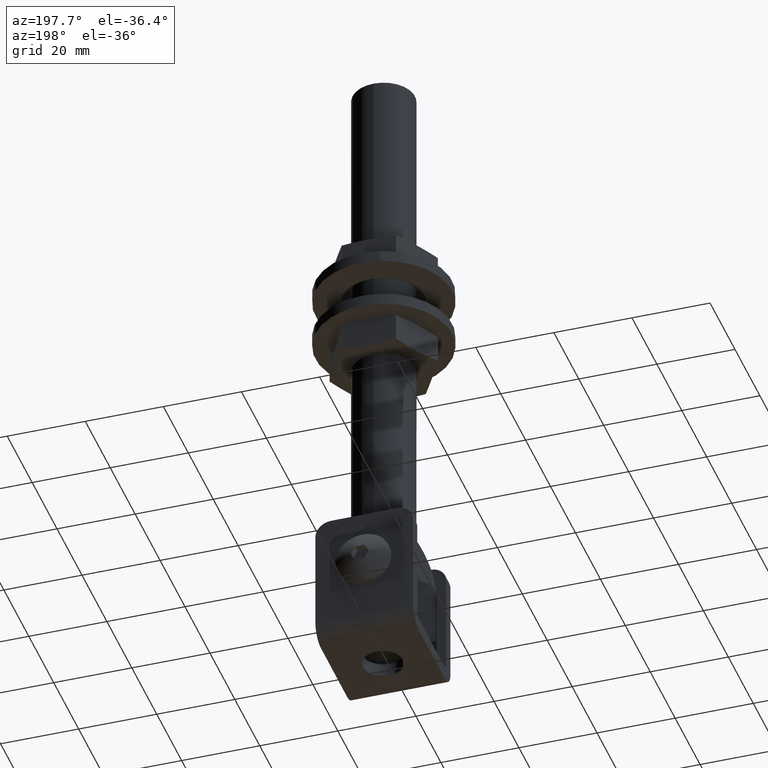
[diagram: clean part render]
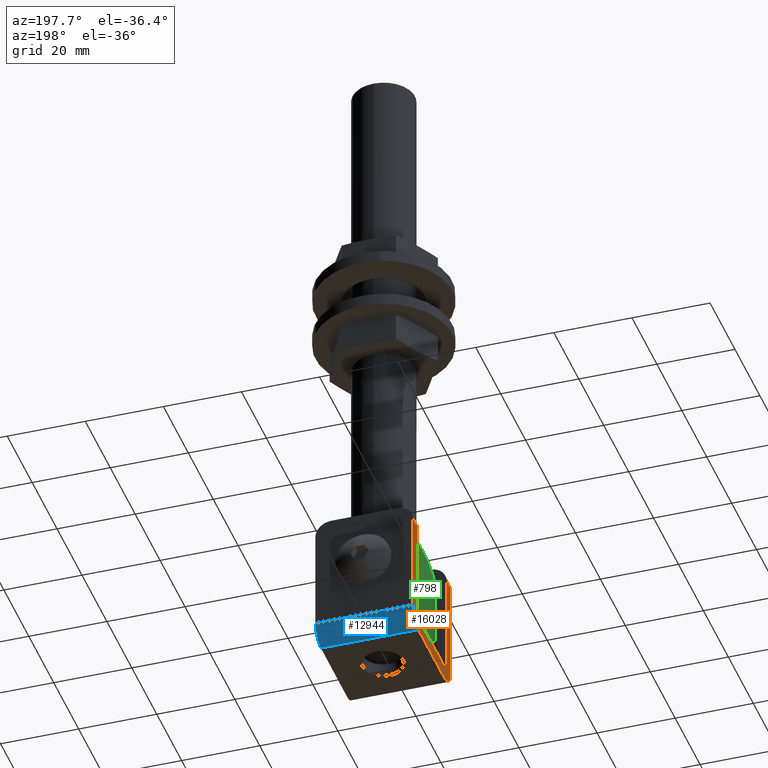
[diagram: same view with three faces highlighted in distinct colors, each labeled with its STEP entity id]
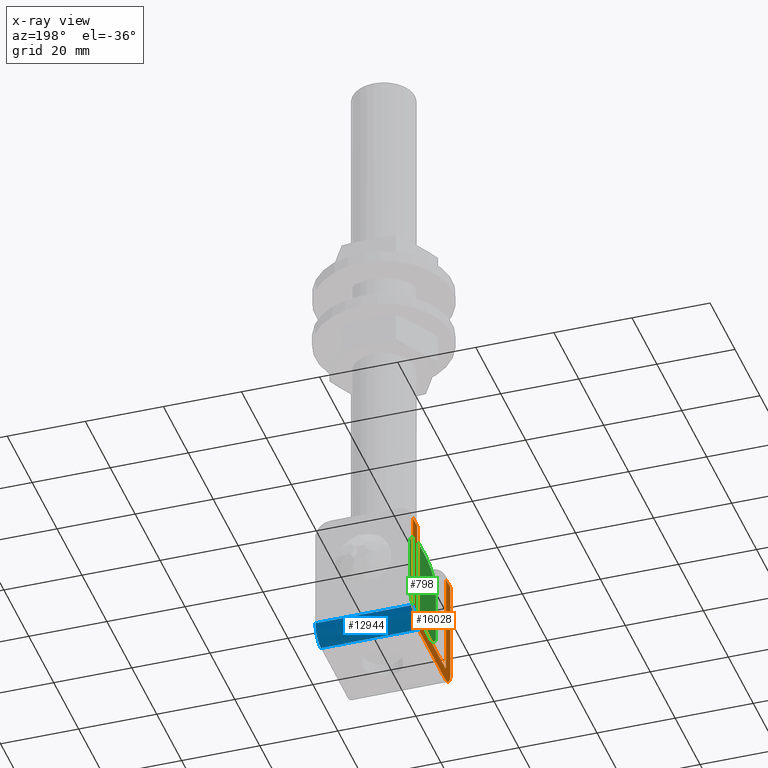
[diagram: x-ray of the same camera — body ghosted, the three highlighted faces saturated]
A machine part, auxiliary view with three faces highlighted in distinct colors.
The next image is the same camera in x-ray (body ghosted, the three faces saturated) — at least one of them is partly hidden behind the body in this view.
Their STEP definitions:

[orange] entity #16028 — the highlighted planar face has unit normal (-1, 0, 0).
#79 = AXIS2_PLACEMENT_3D ( 'NONE', #4746, #4926, #2146 ) ;
#300 = DIRECTION ( 'NONE',  ( 0.000000000000000000, -3.336006684570783101E-16, 1.000000000000000000 ) ) ;
#443 = VECTOR ( 'NONE', #1282, 1000.000000000000000 ) ;
#633 = CARTESIAN_POINT ( 'NONE',  ( -12.50000000000000000, 14.99999999999998401, 30.59999999999999787 ) ) ;
#743 = FACE_OUTER_BOUND ( 'NONE', #13262, .T. ) ;
#764 = ORIENTED_EDGE ( 'NONE', *, *, #13239, .T. ) ;
#1075 = DIRECTION ( 'NONE',  ( 0.000000000000000000, 1.000000000000000000, -0.000000000000000000 ) ) ;
#1121 = VERTEX_POINT ( 'NONE', #8231 ) ;
#1181 = CIRCLE ( 'NONE', #11912, 4.399999999999999467 ) ;
#1282 = DIRECTION ( 'NONE',  ( 0.000000000000000000, -1.000000000000000000, -3.061616997868382648E-16 ) ) ;
#1357 = LINE ( 'NONE', #14655, #7317 ) ;
#1803 = ORIENTED_EDGE ( 'NONE', *, *, #4017, .T. ) ;
#1944 = CIRCLE ( 'NONE', #6680, 4.400000000000001243 ) ;
#2146 = DIRECTION ( 'NONE',  ( 0.000000000000000000, 0.000000000000000000, 1.000000000000000000 ) ) ;
#2180 = DIRECTION ( 'NONE',  ( 0.000000000000000000, -1.002730332934570767E-16, 1.000000000000000000 ) ) ;
#2272 = CARTESIAN_POINT ( 'NONE',  ( -12.50000000000000000, 0.000000000000000000, 30.59999999999999076 ) ) ;
#2300 = VERTEX_POINT ( 'NONE', #633 ) ;
#2314 = CARTESIAN_POINT ( 'NONE',  ( -12.50000000000000000, 0.000000000000000000, 30.59999999999999787 ) ) ;
#2414 = CIRCLE ( 'NONE', #7248, 1.000000000000000000 ) ;
#2442 = CARTESIAN_POINT ( 'NONE',  ( -12.50000000000000000, 11.59999999999998366, 30.59999999999999787 ) ) ;
#2443 = DIRECTION ( 'NONE',  ( 0.000000000000000000, 1.000000000000000000, -0.000000000000000000 ) ) ;
#2576 = DIRECTION ( 'NONE',  ( 1.000000000000000000, -0.000000000000000000, -0.000000000000000000 ) ) ;
#3078 = DIRECTION ( 'NONE',  ( 1.000000000000000000, -0.000000000000000000, -0.000000000000000000 ) ) ;
#3229 = CARTESIAN_POINT ( 'NONE',  ( -12.50000000000000000, 11.59999999999999254, 4.399999999999997691 ) ) ;
#3970 = DIRECTION ( 'NONE',  ( 0.000000000000000000, 0.000000000000000000, 1.000000000000000000 ) ) ;
#4017 = EDGE_CURVE ( 'NONE', #1121, #4190, #4782, .T. ) ;
#4190 = VERTEX_POINT ( 'NONE', #4231 ) ;
#4231 = CARTESIAN_POINT ( 'NONE',  ( -12.50000000000000000, -11.60000000000000320, 30.59999999999999076 ) ) ;
#4334 = ORIENTED_EDGE ( 'NONE', *, *, #14585, .T. ) ;
#4746 = CARTESIAN_POINT ( 'NONE',  ( -12.50000000000000000, 0.000000000000000000, 0.000000000000000000 ) ) ;
#4782 = LINE ( 'NONE', #2272, #11962 ) ;
#4899 = VERTEX_POINT ( 'NONE', #3229 ) ;
#4926 = DIRECTION ( 'NONE',  ( -1.000000000000000000, 0.000000000000000000, 0.000000000000000000 ) ) ;
#4935 = VECTOR ( 'NONE', #11306, 1000.000000000000000 ) ;
#5535 = VERTEX_POINT ( 'NONE', #15067 ) ;
#5888 = ORIENTED_EDGE ( 'NONE', *, *, #6095, .T. ) ;
#5936 = EDGE_CURVE ( 'NONE', #5535, #14605, #12760, .T. ) ;
#6095 = EDGE_CURVE ( 'NONE', #4190, #9247, #16237, .T. ) ;
#6107 = CARTESIAN_POINT ( 'NONE',  ( -12.50000000000000000, -15.00000000000000000, -2.245957089697918778E-15 ) ) ;
#6515 = LINE ( 'NONE', #6107, #9820 ) ;
#6519 = DIRECTION ( 'NONE',  ( 0.000000000000000000, 0.000000000000000000, 1.000000000000000000 ) ) ;
#6680 = AXIS2_PLACEMENT_3D ( 'NONE', #16933, #14202, #6519 ) ;
#6980 = CARTESIAN_POINT ( 'NONE',  ( -12.50000000000000000, -11.60000000000000320, 3.399999999999996803 ) ) ;
#7044 = CARTESIAN_POINT ( 'NONE',  ( -12.50000000000000000, -10.59999999999999964, 4.399999999999999467 ) ) ;
#7248 = AXIS2_PLACEMENT_3D ( 'NONE', #10486, #2576, #3970 ) ;
#7317 = VECTOR ( 'NONE', #300, 1000.000000000000000 ) ;
#7337 = VECTOR ( 'NONE', #13802, 1000.000000000000000 ) ;
#7448 = VERTEX_POINT ( 'NONE', #15578 ) ;
#7609 = ORIENTED_EDGE ( 'NONE', *, *, #13133, .T. ) ;
#8008 = VECTOR ( 'NONE', #8297, 1000.000000000000000 ) ;
#8231 = CARTESIAN_POINT ( 'NONE',  ( -12.50000000000000000, -15.00000000000000355, 30.59999999999999076 ) ) ;
#8256 = CIRCLE ( 'NONE', #13293, 1.000000000000000000 ) ;
#8297 = DIRECTION ( 'NONE',  ( 0.000000000000000000, 1.000000000000000000, 3.738628180984498856E-17 ) ) ;
#8563 = EDGE_CURVE ( 'NONE', #14605, #4899, #2414, .T. ) ;
#9228 = CARTESIAN_POINT ( 'NONE',  ( -12.50000000000000000, 10.59999999999999076, 3.399999999999997691 ) ) ;
#9247 = VERTEX_POINT ( 'NONE', #11335 ) ;
#9316 = VERTEX_POINT ( 'NONE', #10428 ) ;
#9614 = LINE ( 'NONE', #11248, #7337 ) ;
#9710 = CARTESIAN_POINT ( 'NONE',  ( -12.50000000000000000, 10.59999999999999787, 5.591782424845139381E-15 ) ) ;
#9820 = VECTOR ( 'NONE', #2180, 1000.000000000000000 ) ;
#10428 = CARTESIAN_POINT ( 'NONE',  ( -12.50000000000000000, -10.59999999999999787, -8.988456106358301761E-16 ) ) ;
#10486 = CARTESIAN_POINT ( 'NONE',  ( -12.50000000000000000, 10.59999999999999076, 4.399999999999997691 ) ) ;
#10612 = ORIENTED_EDGE ( 'NONE', *, *, #14129, .T. ) ;
#10925 = DIRECTION ( 'NONE',  ( -1.000000000000000000, 0.000000000000000000, 0.000000000000000000 ) ) ;
#11126 = EDGE_CURVE ( 'NONE', #9316, #7448, #1181, .T. ) ;
#11248 = CARTESIAN_POINT ( 'NONE',  ( -12.50000000000000000, 14.99999999999998224, 34.60000000000000142 ) ) ;
#11306 = DIRECTION ( 'NONE',  ( 0.000000000000000000, 0.000000000000000000, -1.000000000000000000 ) ) ;
#11335 = CARTESIAN_POINT ( 'NONE',  ( -12.50000000000000000, -11.60000000000000320, 4.399999999999997691 ) ) ;
#11804 = ORIENTED_EDGE ( 'NONE', *, *, #13423, .T. ) ;
#11912 = AXIS2_PLACEMENT_3D ( 'NONE', #7044, #10925, #12419 ) ;
#11962 = VECTOR ( 'NONE', #2443, 1000.000000000000000 ) ;
#12340 = VERTEX_POINT ( 'NONE', #2442 ) ;
#12419 = DIRECTION ( 'NONE',  ( 0.000000000000000000, 0.000000000000000000, 1.000000000000000000 ) ) ;
#12452 = ORIENTED_EDGE ( 'NONE', *, *, #8563, .T. ) ;
#12542 = VERTEX_POINT ( 'NONE', #9710 ) ;
#12711 = ORIENTED_EDGE ( 'NONE', *, *, #16423, .T. ) ;
#12760 = LINE ( 'NONE', #6980, #8008 ) ;
#13133 = EDGE_CURVE ( 'NONE', #2300, #15153, #9614, .T. ) ;
#13239 = EDGE_CURVE ( 'NONE', #7448, #1121, #6515, .T. ) ;
#13262 = EDGE_LOOP ( 'NONE', ( #14890, #15991, #764, #1803, #5888, #12711, #13620, #12452, #11804, #10612, #7609, #4334 ) ) ;
#13293 = AXIS2_PLACEMENT_3D ( 'NONE', #13692, #3078, #15012 ) ;
#13423 = EDGE_CURVE ( 'NONE', #4899, #12340, #1357, .T. ) ;
#13620 = ORIENTED_EDGE ( 'NONE', *, *, #5936, .T. ) ;
#13692 = CARTESIAN_POINT ( 'NONE',  ( -12.50000000000000000, -10.60000000000000142, 4.399999999999997691 ) ) ;
#13802 = DIRECTION ( 'NONE',  ( 0.000000000000000000, 5.013651664672854082E-16, -1.000000000000000000 ) ) ;
#13803 = LINE ( 'NONE', #15743, #443 ) ;
#13966 = CARTESIAN_POINT ( 'NONE',  ( -12.50000000000000000, -11.60000000000000320, 34.59999999999999432 ) ) ;
#14129 = EDGE_CURVE ( 'NONE', #12340, #2300, #16733, .T. ) ;
#14202 = DIRECTION ( 'NONE',  ( -1.000000000000000000, 0.000000000000000000, 0.000000000000000000 ) ) ;
#14461 = CARTESIAN_POINT ( 'NONE',  ( -12.50000000000000000, 14.99999999999999822, 4.400000000000011902 ) ) ;
#14585 = EDGE_CURVE ( 'NONE', #15153, #12542, #1944, .T. ) ;
#14605 = VERTEX_POINT ( 'NONE', #9228 ) ;
#14655 = CARTESIAN_POINT ( 'NONE',  ( -12.50000000000000000, 11.59999999999999254, 3.399999999999997691 ) ) ;
#14890 = ORIENTED_EDGE ( 'NONE', *, *, #16131, .T. ) ;
#15012 = DIRECTION ( 'NONE',  ( 0.000000000000000000, 0.000000000000000000, 1.000000000000000000 ) ) ;
#15067 = CARTESIAN_POINT ( 'NONE',  ( -12.50000000000000000, -10.60000000000000142, 3.399999999999996803 ) ) ;
#15153 = VERTEX_POINT ( 'NONE', #14461 ) ;
#15411 = PLANE ( 'NONE',  #79 ) ;
#15495 = VECTOR ( 'NONE', #1075, 1000.000000000000000 ) ;
#15578 = CARTESIAN_POINT ( 'NONE',  ( -12.50000000000000000, -15.00000000000000000, 4.399999999999998579 ) ) ;
#15743 = CARTESIAN_POINT ( 'NONE',  ( -12.50000000000000000, 15.00000000000000000, 6.938893903907228378E-15 ) ) ;
#15991 = ORIENTED_EDGE ( 'NONE', *, *, #11126, .T. ) ;
#16028 = ADVANCED_FACE ( 'NONE', ( #743 ), #15411, .T. ) ;
#16131 = EDGE_CURVE ( 'NONE', #12542, #9316, #13803, .T. ) ;
#16237 = LINE ( 'NONE', #13966, #4935 ) ;
#16423 = EDGE_CURVE ( 'NONE', #9247, #5535, #8256, .T. ) ;
#16733 = LINE ( 'NONE', #2314, #15495 ) ;
#16933 = CARTESIAN_POINT ( 'NONE',  ( -12.50000000000000000, 10.59999999999999609, 4.400000000000008349 ) ) ;

[blue] entity #12944 — the highlighted cylindrical surface (edge-blend (fillet) strip) has radius 4.4 mm, axis along (-1, 0, 0).
#311 = ORIENTED_EDGE ( 'NONE', *, *, #12472, .F. ) ;
#556 = LINE ( 'NONE', #8237, #945 ) ;
#740 = DIRECTION ( 'NONE',  ( 1.000000000000000000, -0.000000000000000000, -0.000000000000000000 ) ) ;
#758 = CYLINDRICAL_SURFACE ( 'NONE', #1714, 4.400000000000001243 ) ;
#945 = VECTOR ( 'NONE', #8298, 1000.000000000000000 ) ;
#1177 = CIRCLE ( 'NONE', #12121, 4.400000000000001243 ) ;
#1273 = ORIENTED_EDGE ( 'NONE', *, *, #4883, .F. ) ;
#1714 = AXIS2_PLACEMENT_3D ( 'NONE', #13218, #4214, #6807 ) ;
#1944 = CIRCLE ( 'NONE', #6680, 4.400000000000001243 ) ;
#3035 = DIRECTION ( 'NONE',  ( 1.000000000000000000, -0.000000000000000000, -0.000000000000000000 ) ) ;
#4214 = DIRECTION ( 'NONE',  ( -1.000000000000000000, 0.000000000000000000, 0.000000000000000000 ) ) ;
#4516 = VERTEX_POINT ( 'NONE', #4691 ) ;
#4643 = CARTESIAN_POINT ( 'NONE',  ( 12.50000000000000000, 10.59999999999999609, 4.400000000000008349 ) ) ;
#4691 = CARTESIAN_POINT ( 'NONE',  ( 12.50000000000000000, 10.59999999999999787, 5.591782424845139381E-15 ) ) ;
#4883 = EDGE_CURVE ( 'NONE', #12657, #15153, #556, .T. ) ;
#5679 = CARTESIAN_POINT ( 'NONE',  ( 12.50000000000000000, 10.59999999999999787, 5.591782424845139381E-15 ) ) ;
#6519 = DIRECTION ( 'NONE',  ( 0.000000000000000000, 0.000000000000000000, 1.000000000000000000 ) ) ;
#6680 = AXIS2_PLACEMENT_3D ( 'NONE', #16933, #14202, #6519 ) ;
#6807 = DIRECTION ( 'NONE',  ( 0.000000000000000000, 0.000000000000000000, 1.000000000000000000 ) ) ;
#7551 = VECTOR ( 'NONE', #3035, 1000.000000000000000 ) ;
#7978 = ORIENTED_EDGE ( 'NONE', *, *, #14585, .F. ) ;
#8237 = CARTESIAN_POINT ( 'NONE',  ( 12.50000000000000000, 14.99999999999999822, 4.400000000000011902 ) ) ;
#8298 = DIRECTION ( 'NONE',  ( -1.000000000000000000, 0.000000000000000000, 0.000000000000000000 ) ) ;
#9189 = EDGE_CURVE ( 'NONE', #4516, #12657, #1177, .T. ) ;
#9710 = CARTESIAN_POINT ( 'NONE',  ( -12.50000000000000000, 10.59999999999999787, 5.591782424845139381E-15 ) ) ;
#9929 = DIRECTION ( 'NONE',  ( 0.000000000000000000, 0.000000000000000000, 1.000000000000000000 ) ) ;
#10785 = EDGE_LOOP ( 'NONE', ( #16001, #311, #7978, #1273 ) ) ;
#12121 = AXIS2_PLACEMENT_3D ( 'NONE', #4643, #740, #9929 ) ;
#12472 = EDGE_CURVE ( 'NONE', #12542, #4516, #14531, .T. ) ;
#12542 = VERTEX_POINT ( 'NONE', #9710 ) ;
#12657 = VERTEX_POINT ( 'NONE', #16267 ) ;
#12944 = ADVANCED_FACE ( 'NONE', ( #16559 ), #758, .T. ) ;
#13218 = CARTESIAN_POINT ( 'NONE',  ( 12.50000000000000000, 10.59999999999999609, 4.400000000000008349 ) ) ;
#14202 = DIRECTION ( 'NONE',  ( -1.000000000000000000, 0.000000000000000000, 0.000000000000000000 ) ) ;
#14461 = CARTESIAN_POINT ( 'NONE',  ( -12.50000000000000000, 14.99999999999999822, 4.400000000000011902 ) ) ;
#14531 = LINE ( 'NONE', #5679, #7551 ) ;
#14585 = EDGE_CURVE ( 'NONE', #15153, #12542, #1944, .T. ) ;
#15153 = VERTEX_POINT ( 'NONE', #14461 ) ;
#16001 = ORIENTED_EDGE ( 'NONE', *, *, #9189, .F. ) ;
#16267 = CARTESIAN_POINT ( 'NONE',  ( 12.50000000000000000, 14.99999999999999822, 4.400000000000011902 ) ) ;
#16559 = FACE_OUTER_BOUND ( 'NONE', #10785, .T. ) ;
#16933 = CARTESIAN_POINT ( 'NONE',  ( -12.50000000000000000, 10.59999999999999609, 4.400000000000008349 ) ) ;

[green] entity #798 — the highlighted planar face has unit normal (1, 0, 0).
#5 = VERTEX_POINT ( 'NONE', #11297 ) ;
#475 = CARTESIAN_POINT ( 'NONE',  ( -10.00000000000000178, -3.376667646663305433, -11.37409708594294067 ) ) ;
#533 = CARTESIAN_POINT ( 'NONE',  ( -10.00000000000000000, -1.936059514911312007, -11.57807682333209698 ) ) ;
#536 = CARTESIAN_POINT ( 'NONE',  ( -10.00000000000000355, 10.25647189893193634, 8.433284591062786717 ) ) ;
#599 = CARTESIAN_POINT ( 'NONE',  ( -9.999999999999996447, 4.826944333985817792, -11.06110091654055694 ) ) ;
#600 = CARTESIAN_POINT ( 'NONE',  ( -9.999999999999998224, 0.4729771793340821762, 12.20608161101754874 ) ) ;
#698 = CARTESIAN_POINT ( 'NONE',  ( -10.00000000000000000, 6.803860390362042487, 11.17823956983875533 ) ) ;
#798 = ADVANCED_FACE ( 'NONE', ( #15481 ), #2357, .F. ) ;
#1791 = CARTESIAN_POINT ( 'NONE',  ( -9.999999999999996447, 6.685171214131375272, -10.44729610384664120 ) ) ;
#1847 = CARTESIAN_POINT ( 'NONE',  ( -10.00000000000000000, -0.9641789267820983778, -11.63989648929289089 ) ) ;
#1848 = CARTESIAN_POINT ( 'NONE',  ( -10.00000000000000000, 10.49999999999999467, 8.000000000000005329 ) ) ;
#1893 = CARTESIAN_POINT ( 'NONE',  ( -10.00000000000000000, 9.906227708769490548, -8.273496471334775393 ) ) ;
#1894 = CARTESIAN_POINT ( 'NONE',  ( -9.999999999999998224, -1.010878615217253085, 12.20511583478168660 ) ) ;
#2357 = PLANE ( 'NONE',  #15602 ) ;
#3069 = CARTESIAN_POINT ( 'NONE',  ( -10.00000000000000000, 3.401163311353999408, -11.36993860593332606 ) ) ;
#3166 = CARTESIAN_POINT ( 'NONE',  ( -10.00000000000000000, 9.315605219378950252, 9.596144148012523800 ) ) ;
#3288 = CARTESIAN_POINT ( 'NONE',  ( -10.00000000000000000, -6.812204221674037719, 11.17461090823649172 ) ) ;
#3482 = EDGE_CURVE ( 'NONE', #5, #16445, #3567, .T. ) ;
#3567 = LINE ( 'NONE', #7703, #8714 ) ;
#3660 = B_SPLINE_CURVE_WITH_KNOTS ( 'NONE', 3,
 ( #12302, #12355, #16249, #7247, #12405, #9843, #10968, #5877, #15051, #3288, #4441, #13627, #4556, #8583, #1894, #600, #4660, #4605, #5768, #7081, #4512, #13746, #7296, #11083, #698, #14950, #15165, #16409, #3166, #15000, #9940, #536, #8429, #1848 ),
 .UNSPECIFIED., .F., .F.,
 ( 4, 2, 2, 2, 2, 2, 2, 2, 2, 2, 2, 2, 2, 2, 2, 2, 4 ),
 ( 0.04560536568392031809, 0.04634613814385332708, 0.04708691060378633608, 0.04856845552365236102, 0.05005000044351838595, 0.05153154536338440395, 0.05449463520311645381, 0.05745772504284850368, 0.05893926996271452168, 0.06042081488258054661, 0.06190235980244657155, 0.06338390472231258954, 0.06486544964217862141, 0.06634699456204463941, 0.06782853948191067128, 0.06856931194184368028, 0.06931008440177670316 ),
 .UNSPECIFIED. ) ;
#4438 = CARTESIAN_POINT ( 'NONE',  ( -9.999999999999998224, -9.869362242900871607, -8.250535314603672177 ) ) ;
#4441 = CARTESIAN_POINT ( 'NONE',  ( -10.00000000000000355, -6.349510579836054269, 11.34965218638875406 ) ) ;
#4511 = CARTESIAN_POINT ( 'NONE',  ( -9.999999999999998224, 0.9918905441701787451, -11.63867347069780678 ) ) ;
#4512 = CARTESIAN_POINT ( 'NONE',  ( -10.00000000000000000, 3.924445690380231611, 11.94316064139937161 ) ) ;
#4556 = CARTESIAN_POINT ( 'NONE',  ( -9.999999999999998224, -3.949260366975630987, 11.95599134561244803 ) ) ;
#4605 = CARTESIAN_POINT ( 'NONE',  ( -9.999999999999998224, 1.959845516156061507, 12.14988194585818526 ) ) ;
#4660 = CARTESIAN_POINT ( 'NONE',  ( -10.00000000000000000, 0.9710451600579655951, 12.19552953899213321 ) ) ;
#4780 = CARTESIAN_POINT ( 'NONE',  ( -10.00000000000000000, -10.49999999999999645, -7.500000000000013323 ) ) ;
#4906 = EDGE_CURVE ( 'NONE', #5, #13025, #3660, .T. ) ;
#5768 = CARTESIAN_POINT ( 'NONE',  ( -10.00000000000000000, 2.452859468599004611, 12.11475045548699292 ) ) ;
#5874 = CARTESIAN_POINT ( 'NONE',  ( -10.00000000000000178, -10.19994812172768484, -7.890872178592313269 ) ) ;
#5877 = CARTESIAN_POINT ( 'NONE',  ( -10.00000000000000000, -8.134204762391226140, 10.50519075158517168 ) ) ;
#6002 = B_SPLINE_CURVE_WITH_KNOTS ( 'NONE', 3,
 ( #8362, #5874, #4438, #14883, #16194, #16247, #9625, #16291, #16350, #8482, #6979, #10910, #475, #533, #1847, #4511, #8523, #3069, #9685, #599, #13574, #1791, #11026, #14949, #1893, #16118 ),
 .UNSPECIFIED., .F., .F.,
 ( 4, 2, 2, 2, 2, 2, 2, 2, 2, 2, 2, 2, 4 ),
 ( 0.05510719432500827547, 0.05656136579317184304, 0.05728845152725362683, 0.05801553726133541061, 0.06092388019766253188, 0.06237805166582609251, 0.06383222313398964620, 0.06674056607031678134, 0.06964890900664390261, 0.07110308047480745630, 0.07255725194297102387, 0.07546559487929814514, 0.07837393781562526640 ),
 .UNSPECIFIED. ) ;
#6263 = CARTESIAN_POINT ( 'NONE',  ( -10.00000000000000178, 10.50000000000000355, -7.500000000000012434 ) ) ;
#6979 = CARTESIAN_POINT ( 'NONE',  ( -9.999999999999998224, -4.803089857052659895, -11.06744571227012663 ) ) ;
#7081 = CARTESIAN_POINT ( 'NONE',  ( -9.999999999999998224, 3.435160617866895638, 12.01139923367670193 ) ) ;
#7144 = EDGE_LOOP ( 'NONE', ( #13189, #16332, #11170, #14271 ) ) ;
#7247 = CARTESIAN_POINT ( 'NONE',  ( -10.00000000000000000, -9.973028467845654887, 8.840282756229111527 ) ) ;
#7296 = CARTESIAN_POINT ( 'NONE',  ( -10.00000000000000000, 5.384129531053307716, 11.64516262647469169 ) ) ;
#7648 = DIRECTION ( 'NONE',  ( 0.000000000000000000, 0.000000000000000000, -1.000000000000000000 ) ) ;
#7703 = CARTESIAN_POINT ( 'NONE',  ( -10.00000000000000000, -10.49999999999999289, 12.49999999999999289 ) ) ;
#8362 = CARTESIAN_POINT ( 'NONE',  ( -10.00000000000000000, -10.49999999999999645, -7.500000000000013323 ) ) ;
#8429 = CARTESIAN_POINT ( 'NONE',  ( -10.00000000000000355, 10.38551315465792868, 8.220449983546613382 ) ) ;
#8450 = VERTEX_POINT ( 'NONE', #6263 ) ;
#8482 = CARTESIAN_POINT ( 'NONE',  ( -9.999999999999998224, -5.277017380566450200, -10.93380503999687647 ) ) ;
#8523 = CARTESIAN_POINT ( 'NONE',  ( -10.00000000000000000, 1.961579052094917452, -11.57579138592145362 ) ) ;
#8583 = CARTESIAN_POINT ( 'NONE',  ( -9.999999999999998224, -1.995333730846112985, 12.16416843343187892 ) ) ;
#8714 = VECTOR ( 'NONE', #15731, 1000.000000000000000 ) ;
#8765 = DIRECTION ( 'NONE',  ( 1.000000000000000000, 0.000000000000000000, 0.000000000000000000 ) ) ;
#9625 = CARTESIAN_POINT ( 'NONE',  ( -10.00000000000000000, -8.560799665700661976, -9.355552070372674223 ) ) ;
#9685 = CARTESIAN_POINT ( 'NONE',  ( -10.00000000000000000, 3.878472993839300997, -11.28228269293740382 ) ) ;
#9843 = CARTESIAN_POINT ( 'NONE',  ( -10.00000000000000355, -9.318152924843980500, 9.593859256010031089 ) ) ;
#9940 = CARTESIAN_POINT ( 'NONE',  ( -9.999999999999998224, 9.970154271583473005, 8.844180206949419087 ) ) ;
#10347 = VECTOR ( 'NONE', #11637, 1000.000000000000000 ) ;
#10607 = CARTESIAN_POINT ( 'NONE',  ( -10.00000000000000000, 10.49999999999999289, 12.49999999999999467 ) ) ;
#10752 = LINE ( 'NONE', #10607, #10347 ) ;
#10910 = CARTESIAN_POINT ( 'NONE',  ( -10.00000000000000000, -3.854245981271085864, -11.28710972839210314 ) ) ;
#10968 = CARTESIAN_POINT ( 'NONE',  ( -9.999999999999998224, -8.946238331276356703, 9.922091814337026250 ) ) ;
#11026 = CARTESIAN_POINT ( 'NONE',  ( -10.00000000000000000, 7.562860072033321224, -10.02851379375815455 ) ) ;
#11083 = CARTESIAN_POINT ( 'NONE',  ( -9.999999999999998224, 6.338860928364937308, 11.35345733400348145 ) ) ;
#11170 = ORIENTED_EDGE ( 'NONE', *, *, #4906, .T. ) ;
#11297 = CARTESIAN_POINT ( 'NONE',  ( -10.00000000000000000, -10.49999999999999645, 7.999999999999996447 ) ) ;
#11637 = DIRECTION ( 'NONE',  ( -0.000000000000000000, -4.163336342344337027E-16, 1.000000000000000000 ) ) ;
#12241 = CARTESIAN_POINT ( 'NONE',  ( -10.00000000000000000, 10.49999999999999467, 8.000000000000005329 ) ) ;
#12302 = CARTESIAN_POINT ( 'NONE',  ( -10.00000000000000000, -10.49999999999999645, 7.999999999999996447 ) ) ;
#12355 = CARTESIAN_POINT ( 'NONE',  ( -9.999999999999998224, -10.38567963763102853, 8.220129412492614307 ) ) ;
#12405 = CARTESIAN_POINT ( 'NONE',  ( -10.00000000000000000, -9.816461343235920012, 9.037439104365002862 ) ) ;
#13025 = VERTEX_POINT ( 'NONE', #12241 ) ;
#13189 = ORIENTED_EDGE ( 'NONE', *, *, #13547, .F. ) ;
#13547 = EDGE_CURVE ( 'NONE', #16445, #8450, #6002, .T. ) ;
#13574 = CARTESIAN_POINT ( 'NONE',  ( -10.00000000000000000, 5.300641788290309186, -10.92658714108153184 ) ) ;
#13627 = CARTESIAN_POINT ( 'NONE',  ( -9.999999999999996447, -4.920580712570926885, 11.78787622721414863 ) ) ;
#13746 = CARTESIAN_POINT ( 'NONE',  ( -9.999999999999998224, 4.897799515445213636, 11.76037002229952222 ) ) ;
#14271 = ORIENTED_EDGE ( 'NONE', *, *, #15161, .F. ) ;
#14883 = CARTESIAN_POINT ( 'NONE',  ( -10.00000000000000000, -9.332203313772781783, -8.747837291986490627 ) ) ;
#14949 = CARTESIAN_POINT ( 'NONE',  ( -10.00000000000000000, 9.193742690529706607, -8.927557584774863386 ) ) ;
#14950 = CARTESIAN_POINT ( 'NONE',  ( -9.999999999999998224, 7.702619756817019159, 10.75362195066698412 ) ) ;
#15000 = CARTESIAN_POINT ( 'NONE',  ( -9.999999999999998224, 9.812984153268420329, 9.041597763940227850 ) ) ;
#15051 = CARTESIAN_POINT ( 'NONE',  ( -9.999999999999996447, -7.703840555941076751, 10.75272843710520121 ) ) ;
#15161 = EDGE_CURVE ( 'NONE', #8450, #13025, #10752, .T. ) ;
#15165 = CARTESIAN_POINT ( 'NONE',  ( -10.00000000000000000, 8.140305336197339869, 10.50108085381378764 ) ) ;
#15279 = CARTESIAN_POINT ( 'NONE',  ( -10.00000000000000000, 0.000000000000000000, 0.000000000000000000 ) ) ;
#15481 = FACE_OUTER_BOUND ( 'NONE', #7144, .T. ) ;
#15602 = AXIS2_PLACEMENT_3D ( 'NONE', #15279, #8765, #7648 ) ;
#15731 = DIRECTION ( 'NONE',  ( 0.000000000000000000, -1.387778780781445182E-16, -1.000000000000000000 ) ) ;
#16118 = CARTESIAN_POINT ( 'NONE',  ( -10.00000000000000178, 10.50000000000000355, -7.500000000000012434 ) ) ;
#16194 = CARTESIAN_POINT ( 'NONE',  ( -10.00000000000000000, -9.146233283734924058, -8.906534642725215889 ) ) ;
#16247 = CARTESIAN_POINT ( 'NONE',  ( -10.00000000000000000, -8.760863660671230235, -9.210202882044933759 ) ) ;
#16249 = CARTESIAN_POINT ( 'NONE',  ( -10.00000000000000000, -10.25716292873301505, 8.432062701919244674 ) ) ;
#16291 = CARTESIAN_POINT ( 'NONE',  ( -10.00000000000000355, -7.543190510965223972, -10.03873678696425920 ) ) ;
#16332 = ORIENTED_EDGE ( 'NONE', *, *, #3482, .F. ) ;
#16350 = CARTESIAN_POINT ( 'NONE',  ( -9.999999999999998224, -6.665695638232019604, -10.45589106012309344 ) ) ;
#16409 = CARTESIAN_POINT ( 'NONE',  ( -10.00000000000000355, 8.945535198595807813, 9.922324137756016071 ) ) ;
#16445 = VERTEX_POINT ( 'NONE', #4780 ) ;